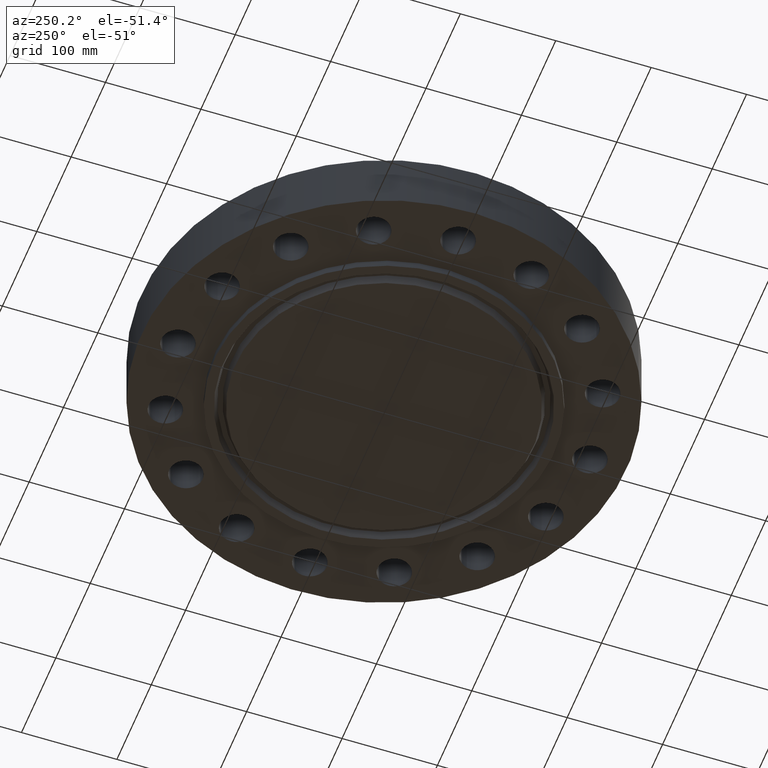
[diagram: clean part render]
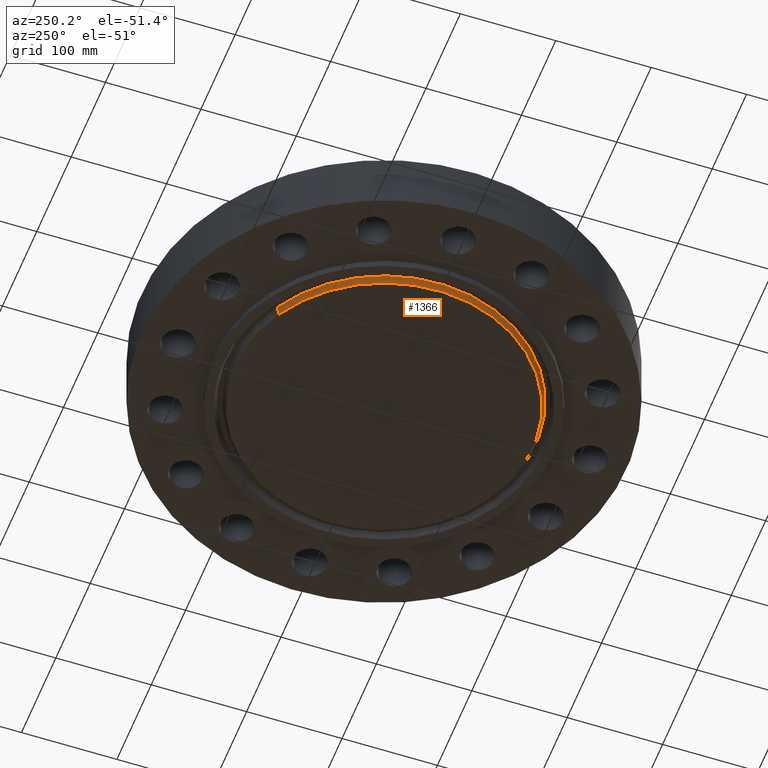
[diagram: same view with one face highlighted and labeled with its STEP entity id]
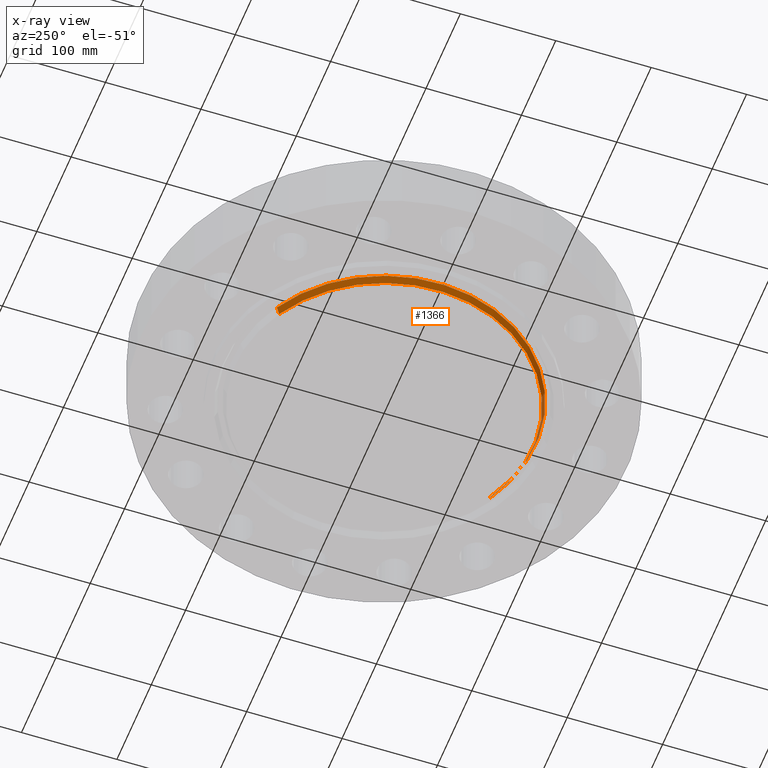
[diagram: x-ray of the same camera — body ghosted, the highlighted face saturated]
A machine part, auxiliary view. The second image highlights one B-rep face of the part: STEP entity #1366.
The next image is the same camera in x-ray: the body ghosted, the highlighted face saturated — about 0% of this face is hidden behind the body in this view.
In plain terms, the highlighted conical surface has half-angle 23 deg.
Its self-contained STEP definition (entity closure, byte-faithful):
#51=AXIS2_PLACEMENT_3D('Circle Axis2P3D',#49,#50,$) ;
#1328=AXIS2_PLACEMENT_3D('Circle Axis2P3D',#1326,#1327,$) ;
#1341=AXIS2_PLACEMENT_3D('Cone Axis2P3D',#1338,#1339,#1340) ;
#44=CARTESIAN_POINT('Vertex',(-2.943972448,5.38890541913,-0.312500000001)) ;
#46=CARTESIAN_POINT('Vertex',(2.943972448,-5.38890541913,-0.312500000001)) ;
#49=CARTESIAN_POINT('Axis2P3D Location',(-5.59482469102E-016,0.,-0.312500000001)) ;
#1304=CARTESIAN_POINT('Vertex',(3.00369282239,-5.49822283118,-0.0190396522348)) ;
#1311=CARTESIAN_POINT('Vertex',(-3.00369282239,5.49822283118,-0.0190396522348)) ;
#1326=CARTESIAN_POINT('Axis2P3D Location',(0.,0.,-0.0190396522348)) ;
#1338=CARTESIAN_POINT('Axis2P3D Location',(0.,0.,-0.372500000001)) ;
#1343=CARTESIAN_POINT('Line Origine',(-2.9738326352,5.44356412516,-0.165769826118)) ;
#1348=CARTESIAN_POINT('Line Origine',(2.9738326352,-5.44356412516,-0.165769826118)) ;
#50=DIRECTION('Axis2P3D Direction',(0.,0.,-0.0393700787402)) ;
#1327=DIRECTION('Axis2P3D Direction',(0.,0.,0.0393700787402)) ;
#1339=DIRECTION('Axis2P3D Direction',(0.,0.,0.0393700787402)) ;
#1340=DIRECTION('Axis2P3D XDirection',(-0.0188750212049,0.0345504945626,0.)) ;
#1344=DIRECTION('Vector Direction',(-0.00737505833565,0.0134999537303,0.0362403485611)) ;
#1349=DIRECTION('Vector Direction',(0.00737505833565,-0.0134999537303,0.0362403485611)) ;
#1345=VECTOR('Line Direction',#1344,0.0393700787402) ;
#1350=VECTOR('Line Direction',#1349,0.0393700787402) ;
#1361=ORIENTED_EDGE('',*,*,#1352,.F.) ;
#1362=ORIENTED_EDGE('',*,*,#1330,.F.) ;
#1363=ORIENTED_EDGE('',*,*,#1347,.T.) ;
#1364=ORIENTED_EDGE('',*,*,#53,.F.) ;
#1366=ADVANCED_FACE('PartBody',(#1365),#1342,.T.) ;
#52=CIRCLE('generated circle',#51,6.14062500002) ;
#1329=CIRCLE('generated circle',#1328,6.26519152721) ;
#1342=CONICAL_SURFACE('Cone',#1341,6.11515651105,0.401425727959) ;
#53=EDGE_CURVE('',#47,#45,#52,.T.) ;
#1330=EDGE_CURVE('',#1312,#1305,#1329,.T.) ;
#1347=EDGE_CURVE('',#1312,#45,#1346,.F.) ;
#1352=EDGE_CURVE('',#1305,#47,#1351,.F.) ;
#1360=EDGE_LOOP('',(#1361,#1362,#1363,#1364)) ;
#1365=FACE_OUTER_BOUND('',#1360,.T.) ;
#1346=LINE('Line',#1343,#1345) ;
#1351=LINE('Line',#1348,#1350) ;
#45=VERTEX_POINT('',#44) ;
#47=VERTEX_POINT('',#46) ;
#1305=VERTEX_POINT('',#1304) ;
#1312=VERTEX_POINT('',#1311) ;